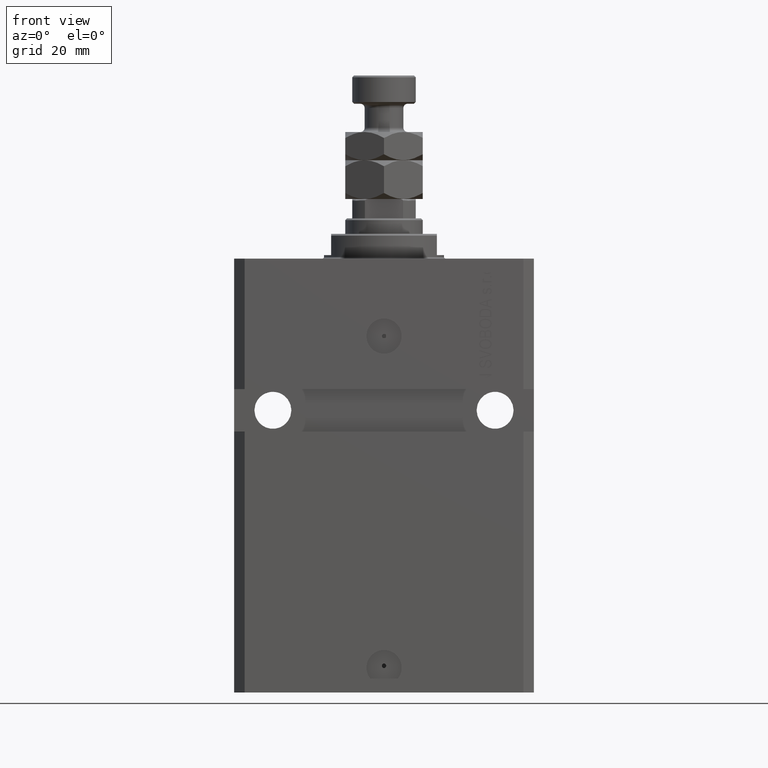
[diagram: clean part render]
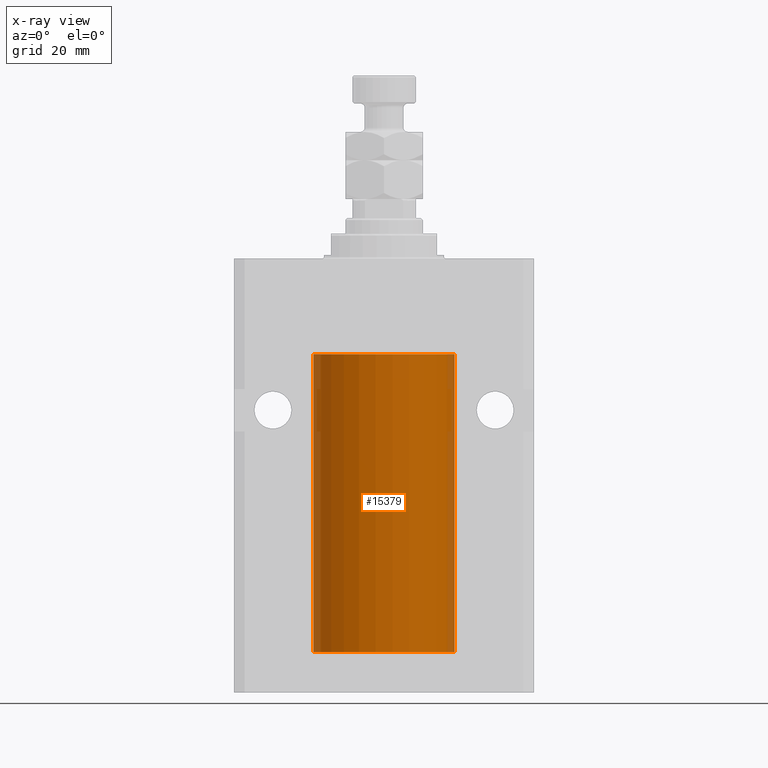
[diagram: x-ray — body ghosted, one internal face saturated and labeled with its STEP entity id]
A machine part, front view, then the same camera in x-ray: the body is ghosted and one INTERNAL B-rep face — a face not visible from any outside direction — is saturated and labeled: STEP entity #15379.
In plain terms, the highlighted cylindrical surface (partial cylindrical patch) has radius 20 mm, axis along (0, 0, 1).
Its self-contained STEP definition (entity closure, byte-faithful):
#684 = DIRECTION ( 'NONE',  ( 1.000000000000000000, 0.000000000000000000, 0.000000000000000000 ) ) ;
#1888 = ORIENTED_EDGE ( 'NONE', *, *, #10211, .F. ) ;
#4772 = VECTOR ( 'NONE', #25478, 1000.000000000000000 ) ;
#7060 = CARTESIAN_POINT ( 'NONE',  ( 20.00000000000000000, 0.000000000000000000, -111.6000000000000085 ) ) ;
#7526 = VERTEX_POINT ( 'NONE', #23723 ) ;
#7786 = ORIENTED_EDGE ( 'NONE', *, *, #25564, .T. ) ;
#8445 = CARTESIAN_POINT ( 'NONE',  ( 20.00000000000000000, 0.000000000000000000, -111.6000000000000085 ) ) ;
#9975 = CARTESIAN_POINT ( 'NONE',  ( -20.00000000000000000, 2.449293598294706513E-15, -27.10000000000000142 ) ) ;
#10143 = AXIS2_PLACEMENT_3D ( 'NONE', #24542, #47711, #43967 ) ;
#10210 = CIRCLE ( 'NONE', #38043, 20.00000000000000000 ) ;
#10211 = EDGE_CURVE ( 'NONE', #21454, #39288, #25975, .T. ) ;
#10587 = ORIENTED_EDGE ( 'NONE', *, *, #47661, .F. ) ;
#10922 = CARTESIAN_POINT ( 'NONE',  ( 19.99766790699043995, -0.3264769477312362556, -108.4426606383000546 ) ) ;
#11580 = ORIENTED_EDGE ( 'NONE', *, *, #29660, .T. ) ;
#12152 = CARTESIAN_POINT ( 'NONE',  ( 0.000000000000000000, 0.000000000000000000, -27.10000000000000142 ) ) ;
#12400 = DIRECTION ( 'NONE',  ( 0.000000000000000000, 0.000000000000000000, 1.000000000000000000 ) ) ;
#14003 = CARTESIAN_POINT ( 'NONE',  ( 20.00000000000000000, -0.1650670266421430665, -109.6250000000000284 ) ) ;
#14657 = CARTESIAN_POINT ( 'NONE',  ( 20.00000000000000000, -0.1632180151482451602, -108.3749999999998295 ) ) ;
#15379 = ADVANCED_FACE ( 'NONE', ( #39475 ), #28275, .F. ) ;
#15962 = ORIENTED_EDGE ( 'NONE', *, *, #26148, .T. ) ;
#17311 = EDGE_CURVE ( 'NONE', #48447, #22381, #10210, .T. ) ;
#17388 = CARTESIAN_POINT ( 'NONE',  ( 20.00000000000000000, 0.000000000000000000, -111.6000000000000085 ) ) ;
#18621 = CARTESIAN_POINT ( 'NONE',  ( 20.00000000000000000, 0.000000000000000000, -27.10000000000000142 ) ) ;
#18725 = CARTESIAN_POINT ( 'NONE',  ( 19.99023198964934167, -0.6250000000000828226, -109.1647941998272842 ) ) ;
#20159 = ORIENTED_EDGE ( 'NONE', *, *, #39223, .F. ) ;
#20168 = B_SPLINE_CURVE_WITH_KNOTS ( 'NONE', 3,
 ( #48035, #14657, #10922, #48775, #26104, #29109 ),
 .UNSPECIFIED., .F., .F.,
 ( 4, 2, 4 ),
 ( 0.001954154509844075859, 0.002442840306376440652, 0.002931526102908805446 ),
 .UNSPECIFIED. ) ;
#20358 = CARTESIAN_POINT ( 'NONE',  ( 19.99023198964933812, -0.6250000000000827116, -109.0000000000000000 ) ) ;
#21454 = VERTEX_POINT ( 'NONE', #17388 ) ;
#22238 = DIRECTION ( 'NONE',  ( -0.000000000000000000, -0.000000000000000000, 1.000000000000000000 ) ) ;
#22381 = VERTEX_POINT ( 'NONE', #18621 ) ;
#23129 = DIRECTION ( 'NONE',  ( 1.000000000000000000, 0.000000000000000000, 0.000000000000000000 ) ) ;
#23723 = CARTESIAN_POINT ( 'NONE',  ( -20.00000000000000000, 2.449293598294706513E-15, -111.6000000000000085 ) ) ;
#24542 = CARTESIAN_POINT ( 'NONE',  ( 0.000000000000000000, 0.000000000000000000, -111.6000000000000085 ) ) ;
#25166 = AXIS2_PLACEMENT_3D ( 'NONE', #34325, #12400, #23129 ) ;
#25478 = DIRECTION ( 'NONE',  ( -0.000000000000000000, -0.000000000000000000, 1.000000000000000000 ) ) ;
#25564 = EDGE_CURVE ( 'NONE', #7526, #48447, #32698, .T. ) ;
#25975 = LINE ( 'NONE', #7060, #41078 ) ;
#26104 = CARTESIAN_POINT ( 'NONE',  ( 19.99023198964933812, -0.6250000000000828226, -108.8350317194948502 ) ) ;
#26148 = EDGE_CURVE ( 'NONE', #46684, #29293, #20168, .T. ) ;
#26854 = DIRECTION ( 'NONE',  ( 0.000000000000000000, 0.000000000000000000, 1.000000000000000000 ) ) ;
#26872 = DIRECTION ( 'NONE',  ( -0.000000000000000000, -0.000000000000000000, 1.000000000000000000 ) ) ;
#28094 = EDGE_LOOP ( 'NONE', ( #20159, #7786, #41708, #10587, #15962, #11580, #1888 ) ) ;
#28275 = CYLINDRICAL_SURFACE ( 'NONE', #10143, 20.00000000000000000 ) ;
#29109 = CARTESIAN_POINT ( 'NONE',  ( 19.99023198964933812, -0.6250000000000827116, -109.0000000000000000 ) ) ;
#29293 = VERTEX_POINT ( 'NONE', #20358 ) ;
#29660 = EDGE_CURVE ( 'NONE', #29293, #39288, #42466, .T. ) ;
#29678 = CARTESIAN_POINT ( 'NONE',  ( 19.99023198964933812, -0.6250000000000827116, -109.0000000000000000 ) ) ;
#32698 = LINE ( 'NONE', #47670, #4772 ) ;
#33156 = CARTESIAN_POINT ( 'NONE',  ( 20.00000000000000000, -4.058908006348821872E-15, -109.6250000000000000 ) ) ;
#33900 = CARTESIAN_POINT ( 'NONE',  ( 19.99766246719553209, -0.3267907458473873761, -109.5571608607969267 ) ) ;
#33964 = CARTESIAN_POINT ( 'NONE',  ( 20.00000000000010303, 3.555666352936568165E-13, -108.3749999999966747 ) ) ;
#34325 = CARTESIAN_POINT ( 'NONE',  ( 0.000000000000000000, 0.000000000000000000, -111.6000000000000085 ) ) ;
#38043 = AXIS2_PLACEMENT_3D ( 'NONE', #12152, #26854, #684 ) ;
#39223 = EDGE_CURVE ( 'NONE', #7526, #21454, #41768, .T. ) ;
#39288 = VERTEX_POINT ( 'NONE', #46771 ) ;
#39475 = FACE_OUTER_BOUND ( 'NONE', #28094, .T. ) ;
#41078 = VECTOR ( 'NONE', #22238, 1000.000000000000000 ) ;
#41269 = VECTOR ( 'NONE', #26872, 1000.000000000000000 ) ;
#41708 = ORIENTED_EDGE ( 'NONE', *, *, #17311, .T. ) ;
#41768 = CIRCLE ( 'NONE', #25166, 20.00000000000000000 ) ;
#41823 = LINE ( 'NONE', #8445, #41269 ) ;
#42466 = B_SPLINE_CURVE_WITH_KNOTS ( 'NONE', 3,
 ( #29678, #18725, #48859, #33900, #14003, #33156 ),
 .UNSPECIFIED., .F., .F.,
 ( 4, 2, 4 ),
 ( 0.002931526102908805446, 0.003419696219975630440, 0.003907866337042455000 ),
 .UNSPECIFIED. ) ;
#43967 = DIRECTION ( 'NONE',  ( 1.000000000000000000, 0.000000000000000000, 0.000000000000000000 ) ) ;
#46684 = VERTEX_POINT ( 'NONE', #33964 ) ;
#46771 = CARTESIAN_POINT ( 'NONE',  ( 20.00000000000000000, -4.058908006348821872E-15, -109.6250000000000000 ) ) ;
#47661 = EDGE_CURVE ( 'NONE', #46684, #22381, #41823, .T. ) ;
#47670 = CARTESIAN_POINT ( 'NONE',  ( -20.00000000000000000, 2.449293598294706513E-15, -111.6000000000000085 ) ) ;
#47711 = DIRECTION ( 'NONE',  ( -0.000000000000000000, -0.000000000000000000, 1.000000000000000000 ) ) ;
#48035 = CARTESIAN_POINT ( 'NONE',  ( 20.00000000000010303, 3.555666352936568165E-13, -108.3749999999966747 ) ) ;
#48447 = VERTEX_POINT ( 'NONE', #9975 ) ;
#48775 = CARTESIAN_POINT ( 'NONE',  ( 19.99257096259849931, -0.5571491910957669935, -108.6731986224609869 ) ) ;
#48859 = CARTESIAN_POINT ( 'NONE',  ( 19.99256494106949944, -0.5573539455062719306, -109.3264613235961065 ) ) ;